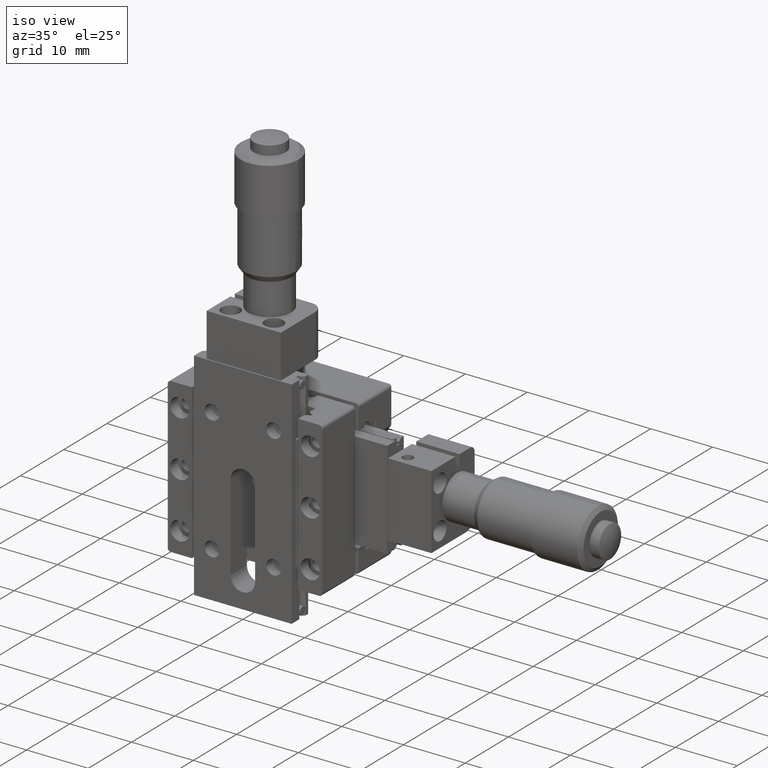
[diagram: clean part render]
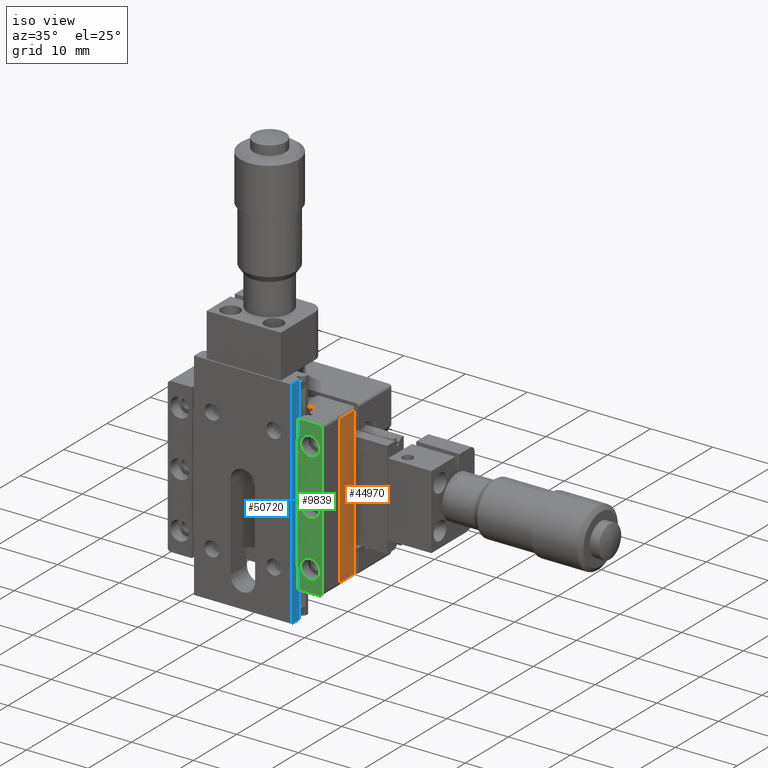
[diagram: same view with three faces highlighted in distinct colors, each labeled with its STEP entity id]
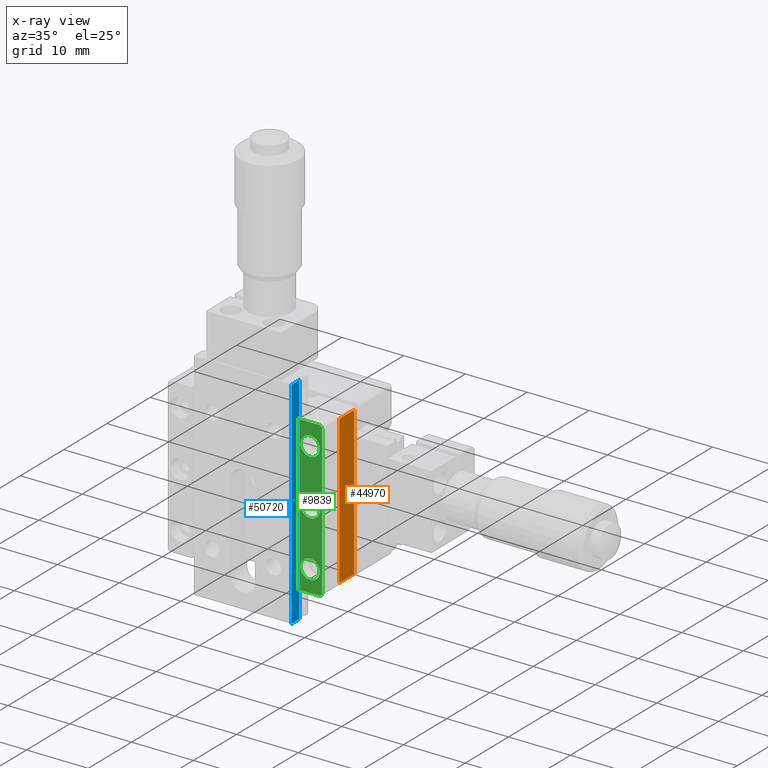
[diagram: x-ray of the same camera — body ghosted, the three highlighted faces saturated]
A machine part, iso view with three faces highlighted in distinct colors.
The next image is the same camera in x-ray (body ghosted, the three faces saturated) — at least one of them is partly hidden behind the body in this view.
Their STEP definitions:

[orange] entity #44970 — the highlighted planar face has unit normal (-1, 0, 0).
#1102 = VECTOR ( 'NONE', #62149, 1000.000000000000000 ) ;
#1726 = ORIENTED_EDGE ( 'NONE', *, *, #58420, .T. ) ;
#3018 = DIRECTION ( 'NONE',  ( -3.223402558938791800E-016, -1.000000000000000000, 1.518119579600224900E-029 ) ) ;
#4005 = CARTESIAN_POINT ( 'NONE',  ( 12.50000000000090100, 8.400000000000055400, -12.00000000000004800 ) ) ;
#4684 = VECTOR ( 'NONE', #14218, 1000.000000000000000 ) ;
#6396 = VERTEX_POINT ( 'NONE', #56183 ) ;
#9643 = CARTESIAN_POINT ( 'NONE',  ( 12.50000000000088600, 4.500000000000019500, -12.00000000000004800 ) ) ;
#9841 = EDGE_CURVE ( 'NONE', #6396, #11850, #20697, .T. ) ;
#11850 = VERTEX_POINT ( 'NONE', #38126 ) ;
#14218 = DIRECTION ( 'NONE',  ( 3.223402558938791800E-016, 1.000000000000000000, -1.518119579600224900E-029 ) ) ;
#15883 = ORIENTED_EDGE ( 'NONE', *, *, #53428, .F. ) ;
#16060 = VECTOR ( 'NONE', #55063, 1000.000000000000000 ) ;
#18434 = ORIENTED_EDGE ( 'NONE', *, *, #26260, .T. ) ;
#20664 = LINE ( 'NONE', #68576, #1102 ) ;
#20697 = LINE ( 'NONE', #51949, #46547 ) ;
#25758 = VERTEX_POINT ( 'NONE', #44748 ) ;
#26260 = EDGE_CURVE ( 'NONE', #61925, #25758, #34435, .T. ) ;
#28973 = CARTESIAN_POINT ( 'NONE',  ( 12.50000000000090100, 8.400000000000055400, -12.50000000000005000 ) ) ;
#30515 = LINE ( 'NONE', #66240, #16060 ) ;
#34435 = LINE ( 'NONE', #4005, #4684 ) ;
#36831 = FACE_OUTER_BOUND ( 'NONE', #39585, .T. ) ;
#38126 = CARTESIAN_POINT ( 'NONE',  ( 12.50000000000088600, 4.500000000000021300, 12.00000000000004800 ) ) ;
#38411 = ORIENTED_EDGE ( 'NONE', *, *, #9841, .T. ) ;
#39585 = EDGE_LOOP ( 'NONE', ( #15883, #18434, #1726, #38411 ) ) ;
#44682 = PLANE ( 'NONE',  #49138 ) ;
#44748 = CARTESIAN_POINT ( 'NONE',  ( 12.50000000000090100, 7.900000000000054500, -12.00000000000004800 ) ) ;
#44970 = ADVANCED_FACE ( 'NONE', ( #36831 ), #44682, .F. ) ;
#46547 = VECTOR ( 'NONE', #3018, 1000.000000000000000 ) ;
#49138 = AXIS2_PLACEMENT_3D ( 'NONE', #28973, #50338, #61765 ) ;
#50338 = DIRECTION ( 'NONE',  ( -1.000000000000000000, 3.223402558938791800E-016, 2.465190328815654000E-031 ) ) ;
#51949 = CARTESIAN_POINT ( 'NONE',  ( 12.50000000000088600, 4.500000000000021300, 12.00000000000004800 ) ) ;
#53428 = EDGE_CURVE ( 'NONE', #61925, #11850, #20664, .T. ) ;
#55063 = DIRECTION ( 'NONE',  ( 7.395570986447149900E-032, -1.520596621805616800E-029, 1.000000000000000000 ) ) ;
#56183 = CARTESIAN_POINT ( 'NONE',  ( 12.50000000000090100, 7.900000000000030600, 12.00000000000004800 ) ) ;
#58420 = EDGE_CURVE ( 'NONE', #25758, #6396, #30515, .T. ) ;
#61765 = DIRECTION ( 'NONE',  ( 3.223402558938791800E-016, 1.000000000000000000, -1.518119579600224900E-029 ) ) ;
#61925 = VERTEX_POINT ( 'NONE', #9643 ) ;
#62149 = DIRECTION ( 'NONE',  ( 7.395570986447149900E-032, -1.520596621805616800E-029, 1.000000000000000000 ) ) ;
#66240 = CARTESIAN_POINT ( 'NONE',  ( 12.50000000000090100, 7.900000000000054500, -12.50000000000005000 ) ) ;
#68576 = CARTESIAN_POINT ( 'NONE',  ( 12.50000000000088600, 4.500000000000019500, -12.50000000000005000 ) ) ;

[blue] entity #50720 — the highlighted planar face has unit normal (-1, 0, 0).
#1346 = PLANE ( 'NONE',  #22471 ) ;
#4572 = DIRECTION ( 'NONE',  ( 5.605193857299268300E-045, -1.000000000000000000, 1.387778780781445900E-015 ) ) ;
#5072 = VECTOR ( 'NONE', #12474, 1000.000000000000000 ) ;
#8455 = LINE ( 'NONE', #49525, #5072 ) ;
#10329 = ORIENTED_EDGE ( 'NONE', *, *, #62907, .F. ) ;
#10514 = LINE ( 'NONE', #60018, #33468 ) ;
#12474 = DIRECTION ( 'NONE',  ( 0.0000000000000000000, 1.110223024625156700E-015, -1.000000000000000000 ) ) ;
#13157 = CARTESIAN_POINT ( 'NONE',  ( 7.900000000000000400, -1.235123114895486300E-014, 17.49999999999997900 ) ) ;
#15477 = CARTESIAN_POINT ( 'NONE',  ( 7.900000000000000400, 1.790000000000019400, -17.50000000000002500 ) ) ;
#17354 = VECTOR ( 'NONE', #4572, 1000.000000000000000 ) ;
#18407 = DIRECTION ( 'NONE',  ( -1.000000000000000000, 0.0000000000000000000, 0.0000000000000000000 ) ) ;
#19041 = CARTESIAN_POINT ( 'NONE',  ( 7.900000000000000400, 1.790000000000019400, -17.50000000000002500 ) ) ;
#22118 = ORIENTED_EDGE ( 'NONE', *, *, #49548, .T. ) ;
#22471 = AXIS2_PLACEMENT_3D ( 'NONE', #28888, #18407, #40950 ) ;
#23319 = VERTEX_POINT ( 'NONE', #31896 ) ;
#23628 = EDGE_CURVE ( 'NONE', #23319, #59018, #10514, .T. ) ;
#28177 = VERTEX_POINT ( 'NONE', #38602 ) ;
#28888 = CARTESIAN_POINT ( 'NONE',  ( 7.900000000000000400, -1.235678226407799000E-014, 17.54999999999997900 ) ) ;
#31896 = CARTESIAN_POINT ( 'NONE',  ( 7.900000000000000400, 1.789999999999973400, 17.49999999999997900 ) ) ;
#33375 = DIRECTION ( 'NONE',  ( 0.0000000000000000000, 1.110223024625156700E-015, -1.000000000000000000 ) ) ;
#33468 = VECTOR ( 'NONE', #33375, 1000.000000000000000 ) ;
#34554 = CARTESIAN_POINT ( 'NONE',  ( 7.900000000000000400, -1.235123114895486300E-014, 17.49999999999997900 ) ) ;
#34786 = VECTOR ( 'NONE', #56884, 1000.000000000000000 ) ;
#38602 = CARTESIAN_POINT ( 'NONE',  ( 7.900000000000000400, 1.235123114895487100E-014, -17.50000000000002500 ) ) ;
#40950 = DIRECTION ( 'NONE',  ( -0.0000000000000000000, -1.110223024625156700E-015, 1.000000000000000000 ) ) ;
#43731 = ORIENTED_EDGE ( 'NONE', *, *, #50774, .F. ) ;
#49525 = CARTESIAN_POINT ( 'NONE',  ( 7.900000000000000400, -1.235678226407799000E-014, 17.54999999999997900 ) ) ;
#49548 = EDGE_CURVE ( 'NONE', #68536, #28177, #8455, .T. ) ;
#50720 = ADVANCED_FACE ( 'NONE', ( #56067 ), #1346, .F. ) ;
#50774 = EDGE_CURVE ( 'NONE', #68536, #23319, #54359, .T. ) ;
#54359 = LINE ( 'NONE', #13157, #34786 ) ;
#55616 = LINE ( 'NONE', #15477, #17354 ) ;
#56067 = FACE_OUTER_BOUND ( 'NONE', #68657, .T. ) ;
#56884 = DIRECTION ( 'NONE',  ( -5.605193857299268300E-045, 1.000000000000000000, -1.387778780781445900E-015 ) ) ;
#59018 = VERTEX_POINT ( 'NONE', #19041 ) ;
#60018 = CARTESIAN_POINT ( 'NONE',  ( 7.900000000000000400, 1.789999999999973400, 17.54999999999997900 ) ) ;
#61672 = ORIENTED_EDGE ( 'NONE', *, *, #23628, .F. ) ;
#62907 = EDGE_CURVE ( 'NONE', #59018, #28177, #55616, .T. ) ;
#68536 = VERTEX_POINT ( 'NONE', #34554 ) ;
#68657 = EDGE_LOOP ( 'NONE', ( #43731, #22118, #10329, #61672 ) ) ;

[green] entity #9839 — the highlighted planar face has unit normal (-0, 1, -0).
#2093 = FACE_BOUND ( 'NONE', #34389, .T. ) ;
#2564 = CARTESIAN_POINT ( 'NONE',  ( 10.54999999999997200, 0.5000000000000828200, -9.000000000000209600 ) ) ;
#2901 = CARTESIAN_POINT ( 'NONE',  ( 11.99999999999999500, 0.5000000000000937000, 12.49999999999993600 ) ) ;
#3002 = CIRCLE ( 'NONE', #41340, 0.5000000000000038900 ) ;
#3380 = DIRECTION ( 'NONE',  ( 4.851115639743983700E-015, -1.000000000000000000, 1.868885533004990500E-016 ) ) ;
#3658 = VERTEX_POINT ( 'NONE', #20202 ) ;
#4491 = FACE_BOUND ( 'NONE', #8223, .T. ) ;
#5551 = CIRCLE ( 'NONE', #49394, 1.550000000000009600 ) ;
#5814 = DIRECTION ( 'NONE',  ( 1.000000000000000000, 5.295916531020073000E-015, -2.782674375823182300E-016 ) ) ;
#5822 = CIRCLE ( 'NONE', #23734, 1.550000000000009600 ) ;
#7112 = CARTESIAN_POINT ( 'NONE',  ( 10.54999999999997200, 0.5000000000000828200, -9.000000000000209600 ) ) ;
#7398 = VERTEX_POINT ( 'NONE', #45603 ) ;
#7866 = CARTESIAN_POINT ( 'NONE',  ( 8.599999999999946400, 0.5000000000000814900, 18.27800139664778500 ) ) ;
#8097 = DIRECTION ( 'NONE',  ( 1.665334536937601900E-016, -1.868885533004824100E-016, -1.000000000000000000 ) ) ;
#8223 = EDGE_LOOP ( 'NONE', ( #62889, #46585 ) ) ;
#9211 = AXIS2_PLACEMENT_3D ( 'NONE', #51579, #29747, #13336 ) ;
#9297 = EDGE_CURVE ( 'NONE', #39219, #49232, #57669, .T. ) ;
#9360 = CARTESIAN_POINT ( 'NONE',  ( 11.99999999999999500, 0.5000000000000937000, 11.99999999999993600 ) ) ;
#9839 = ADVANCED_FACE ( 'NONE', ( #2093, #18170, #4491, #49397 ), #24875, .F. ) ;
#10552 = EDGE_CURVE ( 'NONE', #23780, #58703, #53655, .T. ) ;
#10791 = CARTESIAN_POINT ( 'NONE',  ( 10.54999999999996500, 0.5000000000000860400, 7.449999999999887400 ) ) ;
#11591 = CARTESIAN_POINT ( 'NONE',  ( 10.54999999999997100, 0.5000000000000862600, -1.615800554390616800E-013 ) ) ;
#11945 = AXIS2_PLACEMENT_3D ( 'NONE', #62919, #57654, #63384 ) ;
#12017 = AXIS2_PLACEMENT_3D ( 'NONE', #11591, #61950, #34845 ) ;
#13336 = DIRECTION ( 'NONE',  ( 1.000000000000000000, 4.826448380741893400E-015, 0.0000000000000000000 ) ) ;
#13662 = CARTESIAN_POINT ( 'NONE',  ( 10.54999999999997100, 0.5000000000000862600, -1.615800554390616800E-013 ) ) ;
#13818 = EDGE_LOOP ( 'NONE', ( #53215, #58523 ) ) ;
#14266 = ORIENTED_EDGE ( 'NONE', *, *, #57354, .F. ) ;
#14672 = EDGE_CURVE ( 'NONE', #58703, #23780, #65228, .T. ) ;
#14858 = CARTESIAN_POINT ( 'NONE',  ( 12.49999999999999300, 0.5000000000000980300, 18.27800139664778500 ) ) ;
#15288 = ORIENTED_EDGE ( 'NONE', *, *, #16983, .F. ) ;
#15884 = DIRECTION ( 'NONE',  ( -1.000000000000000000, -5.295916531020073000E-015, -6.113343449698902900E-016 ) ) ;
#16361 = VERTEX_POINT ( 'NONE', #27776 ) ;
#16983 = EDGE_CURVE ( 'NONE', #39219, #47130, #38604, .T. ) ;
#17087 = CARTESIAN_POINT ( 'NONE',  ( 8.599999999999948100, 0.5000000000000763800, 12.49999999999993800 ) ) ;
#18170 = FACE_OUTER_BOUND ( 'NONE', #42062, .T. ) ;
#18233 = AXIS2_PLACEMENT_3D ( 'NONE', #2564, #57198, #62708 ) ;
#19944 = LINE ( 'NONE', #14858, #51360 ) ;
#20099 = EDGE_CURVE ( 'NONE', #3658, #44364, #37584, .T. ) ;
#20202 = CARTESIAN_POINT ( 'NONE',  ( 11.99999999999999800, 0.5000000000001019200, -12.50000000000025900 ) ) ;
#21685 = EDGE_CURVE ( 'NONE', #3658, #49232, #46830, .T. ) ;
#22007 = VECTOR ( 'NONE', #8097, 1000.000000000000000 ) ;
#23408 = VERTEX_POINT ( 'NONE', #52428 ) ;
#23734 = AXIS2_PLACEMENT_3D ( 'NONE', #13662, #62872, #51670 ) ;
#23780 = VERTEX_POINT ( 'NONE', #10791 ) ;
#24875 = PLANE ( 'NONE',  #11945 ) ;
#25815 = DIRECTION ( 'NONE',  ( 1.665334536937601900E-016, -1.868885533004824100E-016, -1.000000000000000000 ) ) ;
#26353 = ORIENTED_EDGE ( 'NONE', *, *, #69695, .F. ) ;
#27009 = CARTESIAN_POINT ( 'NONE',  ( 10.54999999999996500, 0.5000000000000866000, 1.549999999999838200 ) ) ;
#27776 = CARTESIAN_POINT ( 'NONE',  ( 12.49999999999999500, 0.5000000000000967000, 11.99999999999993600 ) ) ;
#28167 = VERTEX_POINT ( 'NONE', #27009 ) ;
#28486 = AXIS2_PLACEMENT_3D ( 'NONE', #35923, #3380, #51596 ) ;
#28962 = DIRECTION ( 'NONE',  ( 4.851115639743983700E-015, -1.000000000000000000, 1.868885533004990500E-016 ) ) ;
#29747 = DIRECTION ( 'NONE',  ( 4.851115639743983700E-015, -1.000000000000000000, 1.868885533004990500E-016 ) ) ;
#30262 = CARTESIAN_POINT ( 'NONE',  ( 11.99999999999999800, 0.5000000000001019200, -12.00000000000025900 ) ) ;
#32191 = CIRCLE ( 'NONE', #18233, 1.550000000000009600 ) ;
#34389 = EDGE_LOOP ( 'NONE', ( #14266, #39281 ) ) ;
#34447 = CIRCLE ( 'NONE', #12017, 1.550000000000009600 ) ;
#34845 = DIRECTION ( 'NONE',  ( 1.000000000000000000, 4.826448380741893400E-015, 1.665334536937819400E-016 ) ) ;
#35281 = CARTESIAN_POINT ( 'NONE',  ( 10.54999999999996500, 0.5000000000000866000, 10.54999999999988500 ) ) ;
#35923 = CARTESIAN_POINT ( 'NONE',  ( 10.54999999999996900, 0.5000000000000862600, 8.999999999999886300 ) ) ;
#36637 = VECTOR ( 'NONE', #15884, 1000.000000000000000 ) ;
#36692 = DIRECTION ( 'NONE',  ( 4.851115639743983700E-015, -1.000000000000000000, 1.868885533004990500E-016 ) ) ;
#37473 = ORIENTED_EDGE ( 'NONE', *, *, #20099, .T. ) ;
#37584 = CIRCLE ( 'NONE', #56656, 0.5000000000000038900 ) ;
#38604 = LINE ( 'NONE', #70495, #64140 ) ;
#39219 = VERTEX_POINT ( 'NONE', #17087 ) ;
#39281 = ORIENTED_EDGE ( 'NONE', *, *, #67145, .F. ) ;
#40130 = VERTEX_POINT ( 'NONE', #46393 ) ;
#41340 = AXIS2_PLACEMENT_3D ( 'NONE', #9360, #36692, #41442 ) ;
#41442 = DIRECTION ( 'NONE',  ( 1.000000000000000000, 4.770489558936182400E-015, 0.0000000000000000000 ) ) ;
#42062 = EDGE_LOOP ( 'NONE', ( #26353, #55533, #15288, #57438, #53408, #37473 ) ) ;
#42887 = EDGE_CURVE ( 'NONE', #16361, #47130, #3002, .T. ) ;
#43568 = CARTESIAN_POINT ( 'NONE',  ( 12.49999999999999800, 0.5000000000000923700, -12.00000000000025900 ) ) ;
#44364 = VERTEX_POINT ( 'NONE', #43568 ) ;
#45603 = CARTESIAN_POINT ( 'NONE',  ( 10.54999999999996900, 0.5000000000000824900, -10.55000000000020900 ) ) ;
#45984 = CARTESIAN_POINT ( 'NONE',  ( 8.599999999999951700, 0.5000000000000828200, -12.50000000000026100 ) ) ;
#46393 = CARTESIAN_POINT ( 'NONE',  ( 10.54999999999996500, 0.5000000000000860400, -1.550000000000161200 ) ) ;
#46585 = ORIENTED_EDGE ( 'NONE', *, *, #10552, .F. ) ;
#46830 = LINE ( 'NONE', #48640, #36637 ) ;
#47130 = VERTEX_POINT ( 'NONE', #2901 ) ;
#48640 = CARTESIAN_POINT ( 'NONE',  ( 12.49999999999999800, 0.5000000000000923700, -12.50000000000025900 ) ) ;
#49232 = VERTEX_POINT ( 'NONE', #45984 ) ;
#49394 = AXIS2_PLACEMENT_3D ( 'NONE', #7112, #28962, #61750 ) ;
#49397 = FACE_BOUND ( 'NONE', #13818, .T. ) ;
#51360 = VECTOR ( 'NONE', #25815, 1000.000000000000000 ) ;
#51579 = CARTESIAN_POINT ( 'NONE',  ( 10.54999999999996900, 0.5000000000000862600, 8.999999999999886300 ) ) ;
#51596 = DIRECTION ( 'NONE',  ( 1.000000000000000000, 4.826448380741893400E-015, 0.0000000000000000000 ) ) ;
#51670 = DIRECTION ( 'NONE',  ( 1.000000000000000000, 4.826448380741893400E-015, 1.665334536937819400E-016 ) ) ;
#52428 = CARTESIAN_POINT ( 'NONE',  ( 10.54999999999996900, 0.5000000000000831600, -7.450000000000209800 ) ) ;
#53215 = ORIENTED_EDGE ( 'NONE', *, *, #61714, .F. ) ;
#53408 = ORIENTED_EDGE ( 'NONE', *, *, #21685, .F. ) ;
#53655 = CIRCLE ( 'NONE', #9211, 1.550000000000009600 ) ;
#55533 = ORIENTED_EDGE ( 'NONE', *, *, #42887, .T. ) ;
#56656 = AXIS2_PLACEMENT_3D ( 'NONE', #30262, #63068, #57323 ) ;
#57198 = DIRECTION ( 'NONE',  ( 4.851115639743983700E-015, -1.000000000000000000, 1.868885533004990500E-016 ) ) ;
#57323 = DIRECTION ( 'NONE',  ( 1.000000000000000000, 4.770489558936182400E-015, 0.0000000000000000000 ) ) ;
#57354 = EDGE_CURVE ( 'NONE', #23408, #7398, #32191, .T. ) ;
#57438 = ORIENTED_EDGE ( 'NONE', *, *, #9297, .T. ) ;
#57654 = DIRECTION ( 'NONE',  ( -4.851115639743970300E-015, 1.000000000000000000, -1.868885533004990200E-016 ) ) ;
#57669 = LINE ( 'NONE', #7866, #22007 ) ;
#58523 = ORIENTED_EDGE ( 'NONE', *, *, #58710, .F. ) ;
#58703 = VERTEX_POINT ( 'NONE', #35281 ) ;
#58710 = EDGE_CURVE ( 'NONE', #40130, #28167, #5822, .T. ) ;
#61714 = EDGE_CURVE ( 'NONE', #28167, #40130, #34447, .T. ) ;
#61750 = DIRECTION ( 'NONE',  ( 1.000000000000000000, 4.826448380741893400E-015, 0.0000000000000000000 ) ) ;
#61950 = DIRECTION ( 'NONE',  ( 4.851115639743983700E-015, -1.000000000000000000, 1.868885533004990500E-016 ) ) ;
#62708 = DIRECTION ( 'NONE',  ( 1.000000000000000000, 4.826448380741893400E-015, 0.0000000000000000000 ) ) ;
#62872 = DIRECTION ( 'NONE',  ( 4.851115639743983700E-015, -1.000000000000000000, 1.868885533004990500E-016 ) ) ;
#62889 = ORIENTED_EDGE ( 'NONE', *, *, #14672, .F. ) ;
#62919 = CARTESIAN_POINT ( 'NONE',  ( 8.599999999999946400, 0.5000000000000814900, 18.27800139664778500 ) ) ;
#63068 = DIRECTION ( 'NONE',  ( 4.851115639743983700E-015, -1.000000000000000000, 1.868885533004990500E-016 ) ) ;
#63384 = DIRECTION ( 'NONE',  ( 1.000000000000000000, 4.851115639743970300E-015, 1.665334536937867900E-016 ) ) ;
#64140 = VECTOR ( 'NONE', #5814, 1000.000000000000000 ) ;
#65228 = CIRCLE ( 'NONE', #28486, 1.550000000000009600 ) ;
#67145 = EDGE_CURVE ( 'NONE', #7398, #23408, #5551, .T. ) ;
#69695 = EDGE_CURVE ( 'NONE', #16361, #44364, #19944, .T. ) ;
#70495 = CARTESIAN_POINT ( 'NONE',  ( 12.49999999999999500, 0.5000000000000962600, 12.49999999999993600 ) ) ;